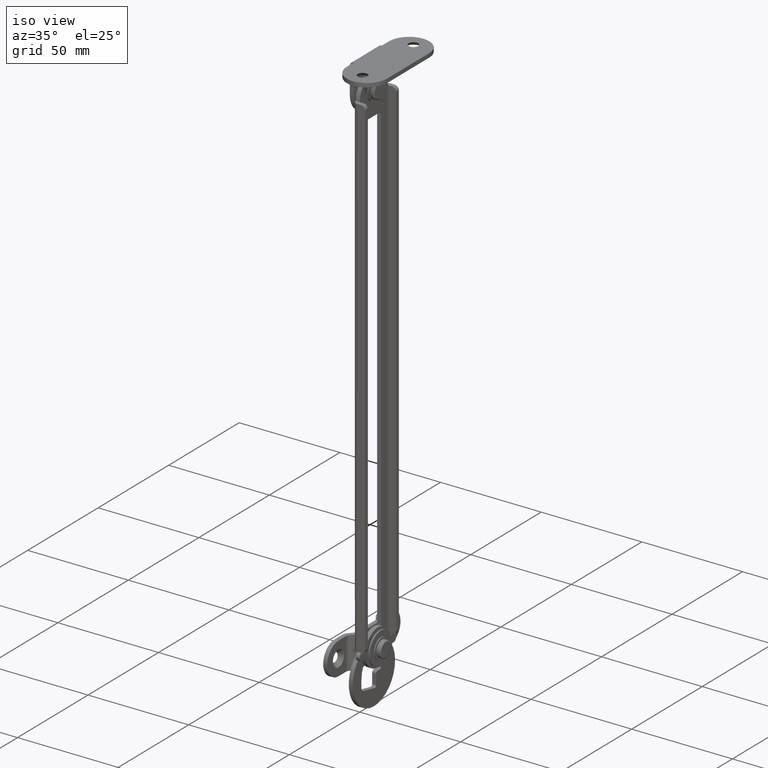
[diagram: clean part render]
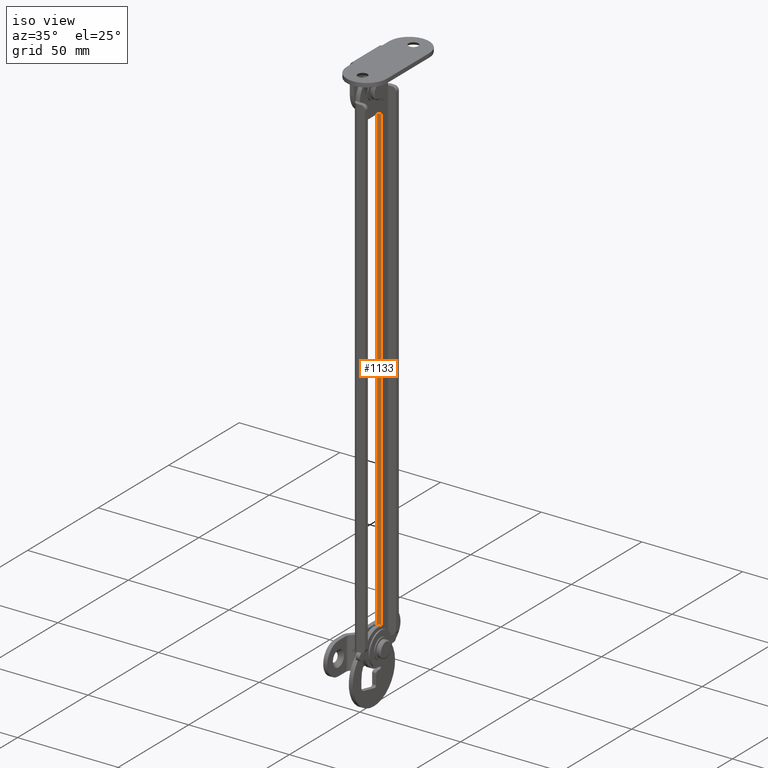
[diagram: same view with one face highlighted and labeled with its STEP entity id]
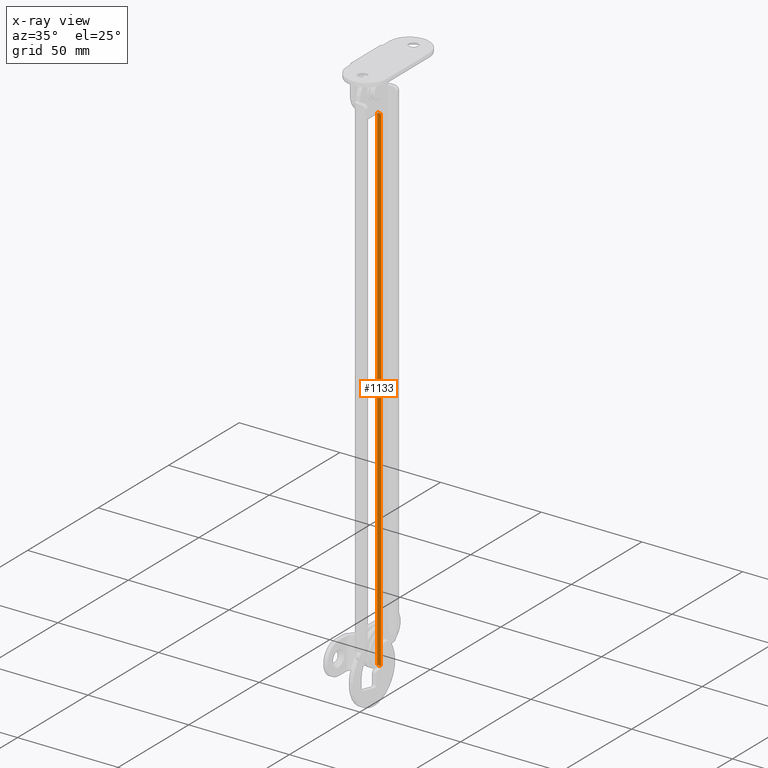
[diagram: x-ray of the same camera — body ghosted, the highlighted face saturated]
A machine part, iso view. The second image highlights one B-rep face of the part: STEP entity #1133.
The next image is the same camera in x-ray: the body ghosted, the highlighted face saturated — about 0% of this face is hidden behind the body in this view.
In plain terms, the highlighted face is a freeform B-spline surface patch.
Its self-contained STEP definition (entity closure, byte-faithful):
#456=CARTESIAN_POINT('',(5.0,5.100006999999771,-261.000015000000020));
#457=VERTEX_POINT('',#456);
#468=CARTESIAN_POINT('',(5.0,5.100007000000000,-13.000000331612560));
#469=VERTEX_POINT('',#468);
#470=CARTESIAN_POINT('',(5.0,5.100007000000000,-13.000000331612560));
#471=CARTESIAN_POINT('',(5.0,5.100006999999771,-261.000015000000020));
#472=QUASI_UNIFORM_CURVE('',1,(#470,#471),.UNSPECIFIED.,.F.,.U.);
#473=EDGE_CURVE('',#469,#457,#472,.T.);
#1092=CARTESIAN_POINT('',(7.0,5.100006999999771,-261.000015000000020));
#1093=VERTEX_POINT('',#1092);
#1104=CARTESIAN_POINT('',(7.0,5.100006999999771,-261.000015000000020));
#1105=CARTESIAN_POINT('',(5.0,5.100006999999771,-261.000015000000020));
#1106=QUASI_UNIFORM_CURVE('',1,(#1104,#1105),.UNSPECIFIED.,.F.,.U.);
#1107=EDGE_CURVE('',#1093,#457,#1106,.T.);
#1112=CARTESIAN_POINT('',(7.099899996123613,5.100006999999830,-273.387615252013800));
#1113=CARTESIAN_POINT('',(7.099899996123613,5.100006999999830,-0.612393427720034));
#1114=CARTESIAN_POINT('',(4.900099950232208,5.100006999999830,-273.387615252013800));
#1115=CARTESIAN_POINT('',(4.900099950232208,5.100006999999830,-0.612393427720034));
#1116=B_SPLINE_SURFACE_WITH_KNOTS('',1,1,((#1112,#1114),(#1113,#1115)),.UNSPECIFIED.,.F.,.F.,.U.,(2,2),(2,2),(0.0,272.775221824293790),(0.0,2.199800045891405),.UNSPECIFIED.);
#1117=ORIENTED_EDGE('',*,*,#473,.T.);
#1118=ORIENTED_EDGE('',*,*,#1107,.F.);
#1119=CARTESIAN_POINT('',(7.0,5.100007000000000,-13.000000331612560));
#1120=VERTEX_POINT('',#1119);
#1121=CARTESIAN_POINT('',(7.0,5.100007000000000,-13.000000331612560));
#1122=CARTESIAN_POINT('',(7.0,5.100006999999771,-261.000015000000020));
#1123=QUASI_UNIFORM_CURVE('',1,(#1121,#1122),.UNSPECIFIED.,.F.,.U.);
#1124=EDGE_CURVE('',#1120,#1093,#1123,.T.);
#1125=ORIENTED_EDGE('',*,*,#1124,.F.);
#1126=CARTESIAN_POINT('',(7.0,5.100007000000000,-13.000000331612560));
#1127=CARTESIAN_POINT('',(5.0,5.100007000000000,-13.000000331612560));
#1128=QUASI_UNIFORM_CURVE('',1,(#1126,#1127),.UNSPECIFIED.,.F.,.U.);
#1129=EDGE_CURVE('',#1120,#469,#1128,.T.);
#1130=ORIENTED_EDGE('',*,*,#1129,.T.);
#1131=EDGE_LOOP('',(#1117,#1118,#1125,#1130));
#1132=FACE_OUTER_BOUND('',#1131,.T.);
#1133=ADVANCED_FACE('',(#1132),#1116,.T.);